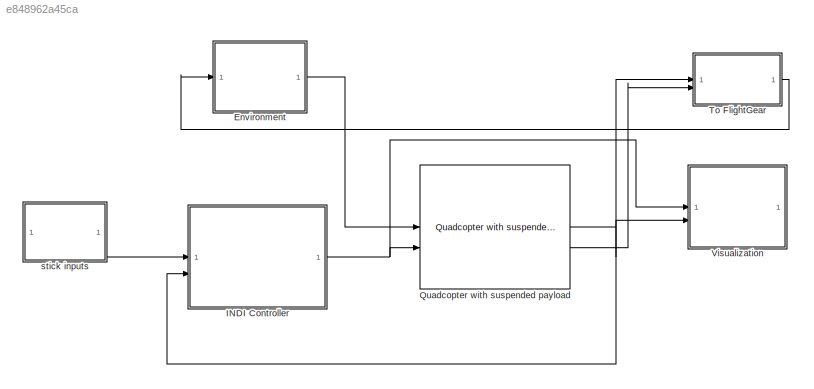
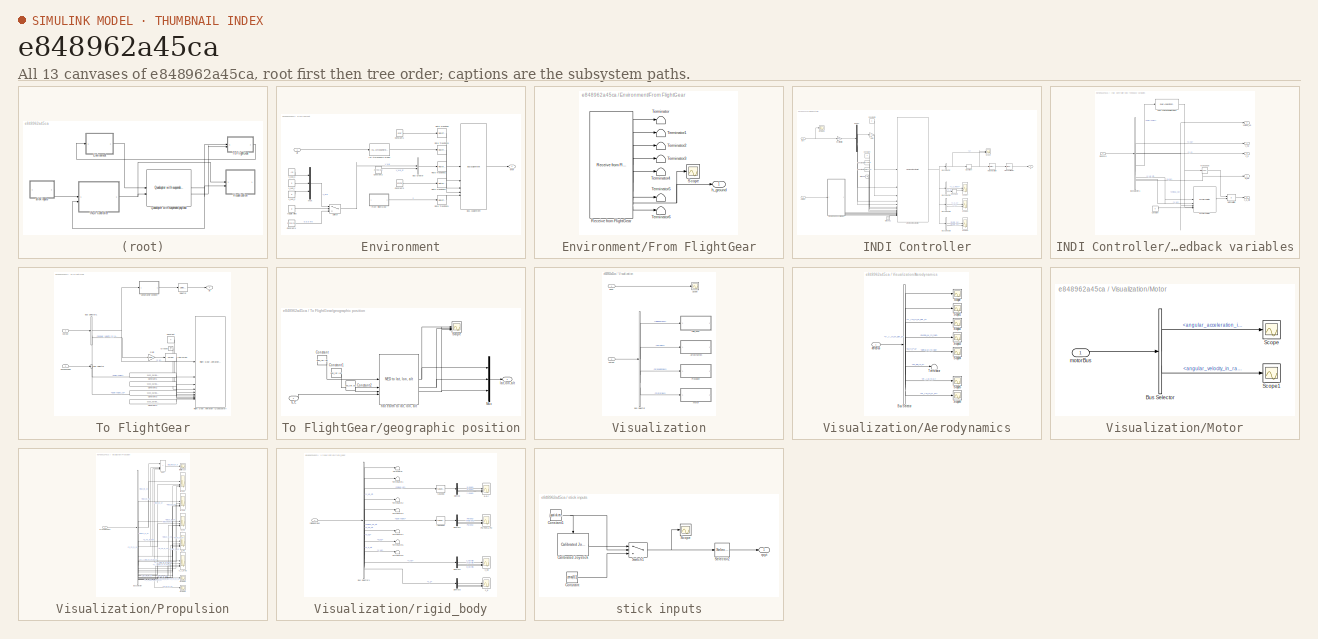
[diagram: thumbnail index - all 13 canvases of the model, root first then tree order]
MODEL slx_e848962a45ca
KIND model
CONFIG AbsTol = auto
CONFIG EnableMultiTasking = on
CONFIG FixedStep = 1/1200
CONFIG MaxStep = auto
CONFIG MinStep = auto
CONFIG RelTol = 1e-4
CONFIG SampleTimeConstraint = Unconstrained
CONFIG SolverName = ode23
CONFIG StartTime = 0.0
CONFIG StopTime = 1000
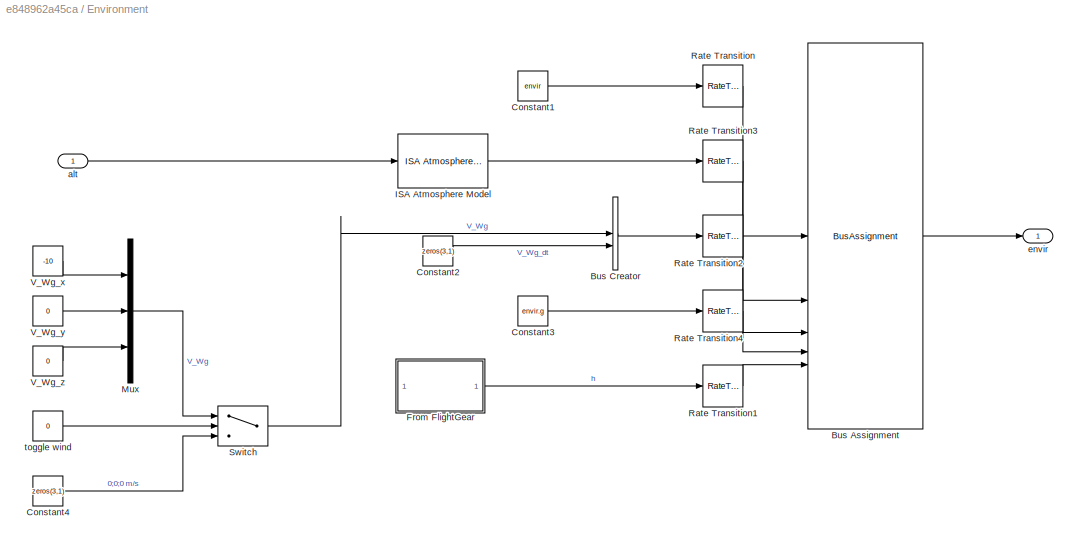
BLOCK [SubSystem] Environment
BLOCK [BusAssignment] Environment/Bus Assignment
  AssignedSignals = atmosphere,wind,g,alt_ground
BLOCK [BusCreator] Environment/Bus Creator
  DisplayOption = bar
  InheritFromInputs = on
  Inputs = 2
BLOCK [Constant] Environment/Constant1
  OutDataTypeStr = Bus: envirBus
  Value = envir
BLOCK [Constant] Environment/Constant2
  Value = zeros(3,1)
BLOCK [Constant] Environment/Constant3
  Value = envir.g
BLOCK [Constant] Environment/Constant4
  Value = zeros(3,1)
BLOCK [SubSystem] Environment/From FlightGear
BLOCK [Reference] Environment/From FlightGear/Receive from FlightGear  REF=flightgear_visualization_lib/Receive from FlightGear  (lib defined in slx_722f04e3a3fc)
  SourceBlock = flightgear_visualization_lib/Receive from FlightGear
  SourceProductName = LADAC
BLOCK [Scope] Environment/From FlightGear/Scope
  Floating = off
  NumInputPorts = 1
  ScopeSpecificationString = Simulink.scopes.TimeScopeBlockCfg('CurrentConfiguration', extmgr.ConfigurationSet(extmgr.Configuration('Core','General UI',true),extmgr.Configuration('Core','Source UI',true),extmgr.Configuration('Sources','WiredSimulink',true,'DataLoggingVariableName','ScopeData1'),extmgr.Configuration('Visuals','Time Domain',true,'SerializedDisplays',{struct('MinYLimReal','4.70605','MaxYLimReal','6.70605','YLabe...<+1441ch>
BLOCK [Terminator] Environment/From FlightGear/Terminator
BLOCK [Terminator] Environment/From FlightGear/Terminator1
BLOCK [Terminator] Environment/From FlightGear/Terminator2
BLOCK [Terminator] Environment/From FlightGear/Terminator3
BLOCK [Terminator] Environment/From FlightGear/Terminator4
BLOCK [Terminator] Environment/From FlightGear/Terminator5
BLOCK [Terminator] Environment/From FlightGear/Terminator6
BLOCK [Outport] Environment/From FlightGear/h_ground
  VectorParamsAs1DForOutWhenUnconnected = off
BLOCK [Reference] Environment/ISA Atmosphere Model  REF=atmosphere_lib/ISA Atmosphere Model  (lib defined in slx_398a0eb2fa35)
  SourceBlock = atmosphere_lib/ISA Atmosphere Model
  SourceProductName = LADAC
BLOCK [Mux] Environment/Mux
  DisplayOption = bar
  Inputs = 3
BLOCK [RateTransition] Environment/Rate Transition
BLOCK [RateTransition] Environment/Rate Transition1
BLOCK [RateTransition] Environment/Rate Transition2
BLOCK [RateTransition] Environment/Rate Transition3
BLOCK [RateTransition] Environment/Rate Transition4
BLOCK [Switch] Environment/Switch
  Criteria = u2 > Threshold
  InputSameDT = off
  SaturateOnIntegerOverflow = off
BLOCK [Constant] Environment/V_Wg_x
  Value = -10
BLOCK [Constant] Environment/V_Wg_y
  Value = 0
BLOCK [Constant] Environment/V_Wg_z
  Value = 0
BLOCK [Inport] Environment/alt
BLOCK [Outport] Environment/envir
  VectorParamsAs1DForOutWhenUnconnected = off
BLOCK [Constant] Environment/toggle wind
  Value = 0
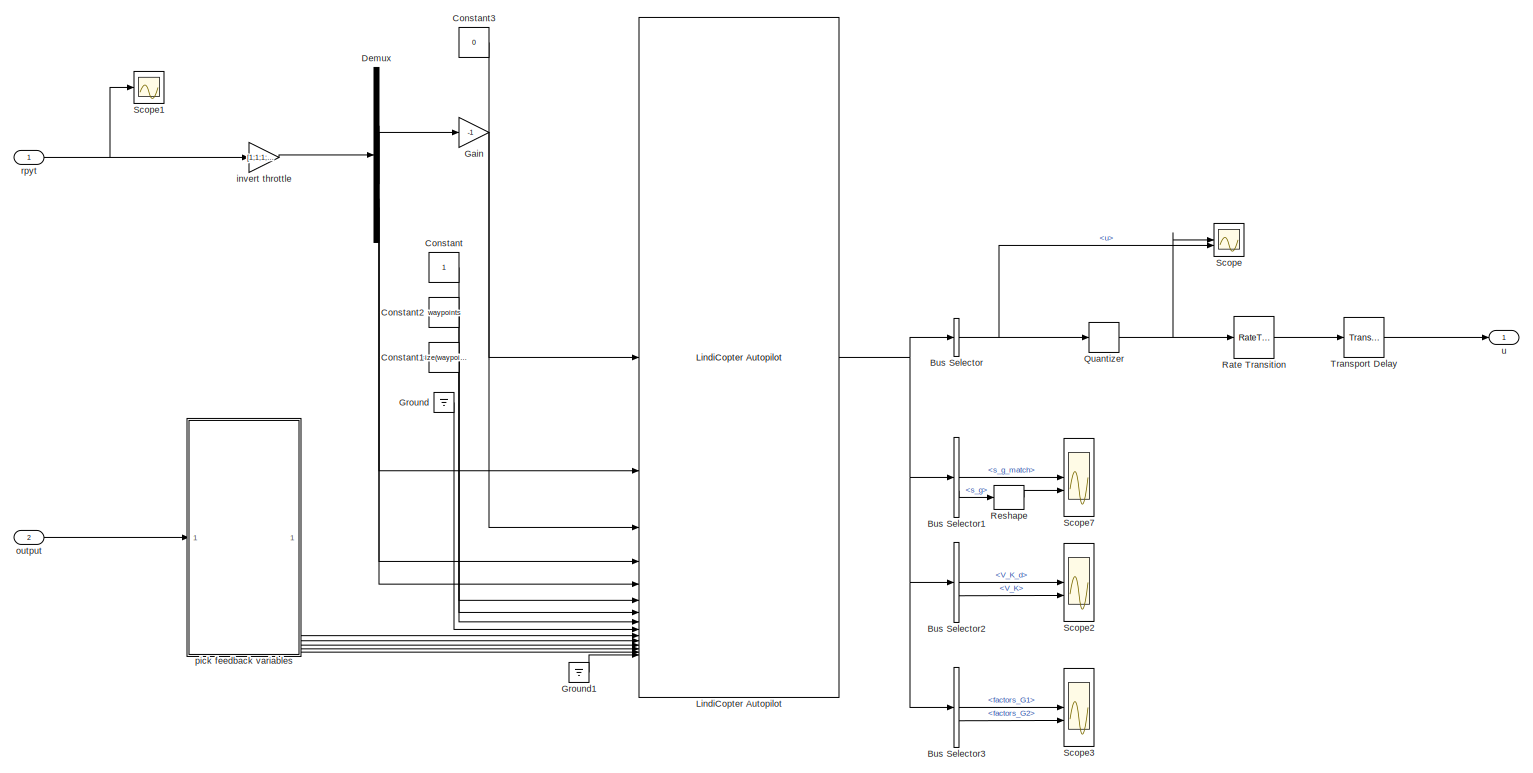
[diagram: INDI Controller - part 1/1, most of the canvas]
BLOCK [SubSystem] INDI Controller
BLOCK [BusSelector] INDI Controller/Bus Selector
  OutputSignals = inner_loop_indi.u
BLOCK [BusSelector] INDI Controller/Bus Selector1
  OutputSignals = wpnav.s_g_match,pos_cntrl.measure.s_g
BLOCK [BusSelector] INDI Controller/Bus Selector2
  OutputSignals = wpnav.velocity.V_K_d,wpnav.velocity.V_K
BLOCK [BusSelector] INDI Controller/Bus Selector3
  OutputSignals = autotune.factors_G1,autotune.factors_G2
BLOCK [Constant] INDI Controller/Constant
BLOCK [Constant] INDI Controller/Constant1
  Value = size(waypoints,2)
BLOCK [Constant] INDI Controller/Constant2
  Value = waypoints
BLOCK [Constant] INDI Controller/Constant3
  Value = 0
BLOCK [Demux] INDI Controller/Demux
BLOCK [Gain] INDI Controller/Gain
  Gain = -1
BLOCK [Ground] INDI Controller/Ground
BLOCK [Ground] INDI Controller/Ground1
BLOCK [Reference] INDI Controller/LindiCopter Autopilot  REF=lindiCopter_lib/LindiCopter Autopilot
  SourceBlock = lindiCopter_lib/LindiCopter Autopilot
  SourceProductName = LADAC
BLOCK [Quantizer] INDI Controller/Quantizer
  QuantizationInterval = 0.001
BLOCK [RateTransition] INDI Controller/Rate Transition
BLOCK [Reshape] INDI Controller/Reshape
BLOCK [Scope] INDI Controller/Scope
  Floating = off
  NumInputPorts = 2
  ScopeSpecificationString = Simulink.scopes.TimeScopeBlockCfg('CurrentConfiguration', extmgr.ConfigurationSet(extmgr.Configuration('Core','General UI',true),extmgr.Configuration('Core','Source UI',true),extmgr.Configuration('Sources','WiredSimulink',true,'DataLoggingVariableName','ScopeData1'),extmgr.Configuration('Visuals','Time Domain',true,'SerializedDisplays',{struct('MinYLimReal','0.09','MaxYLimReal','0.11','YLabelReal'...<+1713ch>
BLOCK [Scope] INDI Controller/Scope1
  Floating = off
  NumInputPorts = 1
  ScopeSpecificationString = Simulink.scopes.TimeScopeBlockCfg('CurrentConfiguration', extmgr.ConfigurationSet(extmgr.Configuration('Core','General UI',true),extmgr.Configuration('Core','Source UI',true),extmgr.Configuration('Sources','WiredSimulink',true,'DataLoggingVariableName','ScopeData1'),extmgr.Configuration('Visuals','Time Domain',true,'SerializedDisplays',{struct('MinYLimReal','-1.20979','MaxYLimReal','1.24553','YLab...<+1517ch>
BLOCK [Scope] INDI Controller/Scope2
  Floating = off
  NumInputPorts = 2
  ScopeSpecificationString = Simulink.scopes.TimeScopeBlockCfg('CurrentConfiguration', extmgr.ConfigurationSet(extmgr.Configuration('Core','General UI',true),extmgr.Configuration('Core','Source UI',true),extmgr.Configuration('Sources','WiredSimulink',true,'DataLoggingVariableName','ScopeData1'),extmgr.Configuration('Visuals','Time Domain',true,'SerializedDisplays',{struct('MinYLimReal','-3.2751','MaxYLimReal','29.47594','YLab...<+1637ch>
BLOCK [Scope] INDI Controller/Scope3
  Floating = off
  NumInputPorts = 2
  ScopeSpecificationString = Simulink.scopes.TimeScopeBlockCfg('CurrentConfiguration', extmgr.ConfigurationSet(extmgr.Configuration('Core','General UI',true),extmgr.Configuration('Core','Source UI',true),extmgr.Configuration('Sources','WiredSimulink',true,'DataLoggingVariableName','ScopeData1'),extmgr.Configuration('Visuals','Time Domain',true),extmgr.Configuration('Tools','Plot Navigation',true),extmgr.Configuration('Tools',...<+40ch>
BLOCK [Scope] INDI Controller/Scope7
  Floating = off
  NumInputPorts = 2
  ScopeSpecificationString = Simulink.scopes.TimeScopeBlockCfg('CurrentConfiguration', extmgr.ConfigurationSet(extmgr.Configuration('Core','General UI',true),extmgr.Configuration('Core','Source UI',true),extmgr.Configuration('Sources','WiredSimulink',true,'DataLoggingVariableName','pos','DataLogging',true,'DataLoggingSaveFormat','StructureWithTime'),extmgr.Configuration('Visuals','Time Domain',true,'SerializedDisplays',{struc...<+1757ch>
BLOCK [TransportDelay] INDI Controller/Transport Delay
  Commented = through
  DelayTime = 0.0025*0
BLOCK [Gain] INDI Controller/invert throttle
  Commented = through
  Gain = [1;1;1;-1]
BLOCK [Inport] INDI Controller/output
  Port = 2
BLOCK [SubSystem] INDI Controller/pick feedback variables
BLOCK [BusSelector] INDI Controller/pick feedback variables/Bus Selector1
  OutputSignals = rigidBodyBus.omega_Kb,rigidBodyBus.EulerAngles,rigidBodyBus.V_Kg,rigidBodyBus.s_g,rigidBodyBus.V_Kb_dt,rigidBodyBus.V_Kb,rigidBodyBus.M_bg
BLOCK [Constant] INDI Controller/pick feedback variables/Constant
  OutDataTypeStr = Inherit: Inherit via back propagation
  Value = 0
BLOCK [Reference] INDI Controller/pick feedback variables/Euler Angles to Rotation Matrix  REF=axes_transformation_lib/Euler Angles to Rotation Matrix  (lib defined in slx_69e2413c78c0)
  SourceBlock = axes_transformation_lib/Euler Angles to Rotation Matrix
  SourceProductName = LADAC
  SourceType = SubSystem
BLOCK [Outport] INDI Controller/pick feedback variables/M_bg
  VectorParamsAs1DForOutWhenUnconnected = off
BLOCK [Product] INDI Controller/pick feedback variables/Matrix Multiply
  Multiplication = Matrix(*)
BLOCK [Math] INDI Controller/pick feedback variables/Transpose
  Operator = transpose
  SignedPower = on
BLOCK [Outport] INDI Controller/pick feedback variables/V_Kg
  Port = 4
  VectorParamsAs1DForOutWhenUnconnected = off
BLOCK [Reference] INDI Controller/pick feedback variables/accelerometer  REF=sensors_lib/accelerometer  (lib defined in mdl_052e9be48c24, mdl_88e42053cf8c, +1 more)
  SourceBlock = sensors_lib/accelerometer
  SourceProductName = LADAC
  SourceType = SubSystem
BLOCK [Inport] INDI Controller/pick feedback variables/measure
BLOCK [Outport] INDI Controller/pick feedback variables/omega_Kb
  Port = 2
  VectorParamsAs1DForOutWhenUnconnected = off
BLOCK [Outport] INDI Controller/pick feedback variables/s_g
  Port = 3
  VectorParamsAs1DForOutWhenUnconnected = off
BLOCK [Outport] INDI Controller/pick feedback variables/s_g_dt2
  Port = 5
  VectorParamsAs1DForOutWhenUnconnected = off
BLOCK [Inport] INDI Controller/rpyt
  OutDataTypeStr = double
  SamplingMode = Sample based
  SignalType = real
BLOCK [Outport] INDI Controller/u
  OutDataTypeStr = double
  PortDimensions = 4
  SamplingMode = Sample based
  SignalType = real
  VectorParamsAs1DForOutWhenUnconnected = off
BLOCK [Reference] Quadcopter with suspended payload  REF=quadcopter_lib/Quadcopter with suspended payload  (lib defined in slx_bd6b051694d1)
  SourceBlock = quadcopter_lib/Quadcopter with suspended payload
  SourceProductName = LADAC
  SourceType = Quadcopter with suspended payload
BLOCK [SubSystem] To FlightGear
BLOCK [BusSelector] To FlightGear/Bus Selector
  OutputSignals = suspPayloadBus.EulerAngles_cp
BLOCK [BusSelector] To FlightGear/Bus Selector1
  OutputSignals = rigidBodyBus.s_g,rigidBodyBus.EulerAngles,motorBus.angular_velocity_in_rad_per_s
BLOCK [Constant] To FlightGear/Constant
  Value = 4
BLOCK [Constant] To FlightGear/Constant1
  Value = susp_payload.rod.length
BLOCK [Constant] To FlightGear/Constant2
  Value = susp_payload.visual.rod_diameter
BLOCK [Constant] To FlightGear/Constant3
  Value = susp_payload.visual.payload_diameter
BLOCK [Constant] To FlightGear/Constant4
  Value = susp_payload.joint.joint_pos_uav_c
BLOCK [Reference] To FlightGear/Flight Gear Animation (Quadcopter)  REF=flightgear_visualization_lib/Flight Gear Animation (Quadcopter)  (lib defined in slx_722f04e3a3fc)
  SourceBlock = flightgear_visualization_lib/Flight Gear Animation (Quadcopter)
  SourceProductName = LADAC
BLOCK [Gain] To FlightGear/Gain
  Gain = copter.config.propDir
BLOCK [Ground] To FlightGear/Ground
BLOCK [Selector] To FlightGear/Selector
  IndexOptions = Index vector (dialog)
  Indices = 3
  InputPortWidth = 3
  OutputSizes = 1
BLOCK [Inport] To FlightGear/SuspPayload
  Port = 2
BLOCK [Outport] To FlightGear/alt
  VectorParamsAs1DForOutWhenUnconnected = off
BLOCK [SubSystem] To FlightGear/geographic position
BLOCK [Constant] To FlightGear/geographic position/Constant
  Value = pos_ref.lat
BLOCK [Constant] To FlightGear/geographic position/Constant1
  Value = pos_ref.lon
BLOCK [Constant] To FlightGear/geographic position/Constant2
  Value = pos_ref.alt
BLOCK [Mux] To FlightGear/geographic position/Mux
  DisplayOption = bar
  Inputs = 3
BLOCK [Scope] To FlightGear/geographic position/Scope
  Floating = off
  NumInputPorts = 3
  ScopeSpecificationString = Simulink.scopes.TimeScopeBlockCfg('CurrentConfiguration', extmgr.ConfigurationSet(extmgr.Configuration('Core','General UI',true),extmgr.Configuration('Core','Source UI',true),extmgr.Configuration('Sources','WiredSimulink',true,'DataLoggingVariableName','ScopeData6'),extmgr.Configuration('Visuals','Time Domain',true,'SerializedDisplays',{struct('MinYLimReal','4.04731','MaxYLimReal','63.57425','YLab...<+1508ch>
BLOCK [Reference] To FlightGear/geographic position/flat earth to lat, lon, alt  REF=axes_transformation_lib/NED to lat, lon, alt  (lib defined in slx_69e2413c78c0)
  SourceBlock = axes_transformation_lib/NED to lat, lon, alt
  SourceProductName = LADAC
  SourceType = SubSystem
BLOCK [Outport] To FlightGear/geographic position/lat,lon,alt
  VectorParamsAs1DForOutWhenUnconnected = off
BLOCK [Inport] To FlightGear/geographic position/s_E
BLOCK [Inport] To FlightGear/output
BLOCK [Reference] To FlightGear/rad//s2rpm  REF=unit_conversions_lib/rad//s2rpm  (lib defined in slx_ae2855d4d91e)
  SourceBlock = unit_conversions_lib/rad//s2rpm
  SourceProductName = LADAC
BLOCK [SubSystem] Visualization
BLOCK [SubSystem] Visualization/Aerodynamics
BLOCK [BusSelector] Visualization/Aerodynamics/Bus Selector
  OutputSignals = V_Ab_in_m_per_s,V_A_in_m_per_s,q_in_Pa,angles.alpha_M_in_rad,angles.beta_M_in_rad,M_ba_in_1,R_Ab_in_N,Q_Ab_in_N_m
BLOCK [Scope] Visualization/Aerodynamics/Scope
  Floating = off
  NumInputPorts = 1
  ScopeSpecificationString = Simulink.scopes.TimeScopeBlockCfg('CurrentConfiguration', extmgr.ConfigurationSet(extmgr.Configuration('Core','General UI',true),extmgr.Configuration('Core','Source UI',true),extmgr.Configuration('Sources','WiredSimulink',true,'DataLoggingVariableName','ScopeData1'),extmgr.Configuration('Visuals','Time Domain',true),extmgr.Configuration('Tools','Plot Navigation',true),extmgr.Configuration('Tools',...<+40ch>
BLOCK [Scope] Visualization/Aerodynamics/Scope1
  Floating = off
  NumInputPorts = 1
  ScopeSpecificationString = Simulink.scopes.TimeScopeBlockCfg('CurrentConfiguration', extmgr.ConfigurationSet(extmgr.Configuration('Core','General UI',true),extmgr.Configuration('Core','Source UI',true),extmgr.Configuration('Sources','WiredSimulink',true,'DataLoggingVariableName','ScopeData2'),extmgr.Configuration('Visuals','Time Domain',true,'SerializedDisplays',{struct('MinYLimReal','-0.81438','MaxYLimReal','7.32941','YLab...<+1419ch>
BLOCK [Scope] Visualization/Aerodynamics/Scope2
  Floating = off
  NumInputPorts = 1
  ScopeSpecificationString = Simulink.scopes.TimeScopeBlockCfg('CurrentConfiguration', extmgr.ConfigurationSet(extmgr.Configuration('Core','General UI',true),extmgr.Configuration('Core','Source UI',true),extmgr.Configuration('Sources','WiredSimulink',true,'DataLoggingVariableName','ScopeData3'),extmgr.Configuration('Visuals','Time Domain',true),extmgr.Configuration('Tools','Plot Navigation',true),extmgr.Configuration('Tools',...<+40ch>
BLOCK [Scope] Visualization/Aerodynamics/Scope3
  Floating = off
  NumInputPorts = 1
  ScopeSpecificationString = Simulink.scopes.TimeScopeBlockCfg('CurrentConfiguration', extmgr.ConfigurationSet(extmgr.Configuration('Core','General UI',true),extmgr.Configuration('Core','Source UI',true),extmgr.Configuration('Sources','WiredSimulink',true,'DataLoggingVariableName','ScopeData4'),extmgr.Configuration('Visuals','Time Domain',true,'SerializedDisplays',{struct('MinYLimReal','-1.9635','MaxYLimReal','1.9635','YLabel...<+1413ch>
BLOCK [Scope] Visualization/Aerodynamics/Scope4
  Floating = off
  NumInputPorts = 1
  ScopeSpecificationString = Simulink.scopes.TimeScopeBlockCfg('CurrentConfiguration', extmgr.ConfigurationSet(extmgr.Configuration('Core','General UI',true),extmgr.Configuration('Core','Source UI',true),extmgr.Configuration('Sources','WiredSimulink',true,'DataLoggingVariableName','ScopeData5'),extmgr.Configuration('Visuals','Time Domain',true,'SerializedDisplays',{struct('MinYLimReal','-3.92698','MaxYLimReal','3.92696','YLab...<+1418ch>
BLOCK [Scope] Visualization/Aerodynamics/Scope5
  Floating = off
  NumInputPorts = 1
  ScopeSpecificationString = Simulink.scopes.TimeScopeBlockCfg('CurrentConfiguration', extmgr.ConfigurationSet(extmgr.Configuration('Core','General UI',true),extmgr.Configuration('Core','Source UI',true),extmgr.Configuration('Sources','WiredSimulink',true,'DataLoggingVariableName','ScopeData6'),extmgr.Configuration('Visuals','Time Domain',true,'SerializedDisplays',{struct('MinYLimReal','-0.83398','MaxYLimReal','0.42106','YLab...<+1516ch>
BLOCK [Scope] Visualization/Aerodynamics/Scope6
  Floating = off
  NumInputPorts = 1
  ScopeSpecificationString = Simulink.scopes.TimeScopeBlockCfg('CurrentConfiguration', extmgr.ConfigurationSet(extmgr.Configuration('Core','General UI',true),extmgr.Configuration('Core','Source UI',true),extmgr.Configuration('Sources','WiredSimulink',true,'DataLoggingVariableName','ScopeData7'),extmgr.Configuration('Visuals','Time Domain',true,'SerializedDisplays',{struct('MinYLimReal','-0.00000000014','MaxYLimReal','0.000000...<+1502ch>
BLOCK [Terminator] Visualization/Aerodynamics/Terminator
BLOCK [Inport] Visualization/Aerodynamics/aeroBus
BLOCK [BusSelector] Visualization/Bus Selector
  OutputSignals = rigidBodyBus,aeroBus,propulsionBus,motorBus
BLOCK [SubSystem] Visualization/Motor
BLOCK [BusSelector] Visualization/Motor/Bus Selector
  OutputSignals = angular_acceleration_in_rad_per_square_s,angular_velocity_in_rad_per_s
BLOCK [Scope] Visualization/Motor/Scope
  Floating = off
  NumInputPorts = 1
  ScopeSpecificationString = Simulink.scopes.TimeScopeBlockCfg('CurrentConfiguration', extmgr.ConfigurationSet(extmgr.Configuration('Core','General UI',true),extmgr.Configuration('Core','Source UI',true),extmgr.Configuration('Sources','WiredSimulink',true,'DataLoggingVariableName','ScopeData15'),extmgr.Configuration('Visuals','Time Domain',true,'SerializedDisplays',{struct('MinYLimReal','-14601.27633','MaxYLimReal','1999.6683...<+1596ch>
BLOCK [Scope] Visualization/Motor/Scope1
  Floating = off
  NumInputPorts = 1
  ScopeSpecificationString = Simulink.scopes.TimeScopeBlockCfg('CurrentConfiguration', extmgr.ConfigurationSet(extmgr.Configuration('Core','General UI',true),extmgr.Configuration('Core','Source UI',true),extmgr.Configuration('Sources','WiredSimulink',true,'DataLoggingVariableName','ScopeData16'),extmgr.Configuration('Visuals','Time Domain',true,'SerializedDisplays',{struct('MinYLimReal','-86.18034','MaxYLimReal','775.62302','...<+1610ch>
BLOCK [Inport] Visualization/Motor/motorBus
BLOCK [SubSystem] Visualization/Propulsion
BLOCK [BusSelector] Visualization/Propulsion/Bus Selector
  OutputSignals = propeller_1.thrust_in_N,propeller_2.thrust_in_N,propeller_3.thrust_in_N,propeller_4.thrust_in_N,propeller_1.torque_in_N,propeller_2.torque_in_N,propeller_3.torque_in_N,propeller_4.torque_in_N,propeller_1.R_Fb_in_N,propeller_2.R_Fb_in_N,propeller_3.R_Fb_in_N,propeller_4.R_Fb_in_N,propeller_1.Q_Fb_in_Nm,propeller_2.Q_Fb_in_Nm,propeller_3.Q_Fb_in_Nm,propeller_4.Q_Fb_in_Nm,propeller_1.V_A_prop_in_m_pe...<+119ch>
BLOCK [Scope] Visualization/Propulsion/Q_Fb
  Floating = off
  NumInputPorts = 4
  ScopeSpecificationString = Simulink.scopes.TimeScopeBlockCfg('CurrentConfiguration', extmgr.ConfigurationSet(extmgr.Configuration('Core','General UI',true),extmgr.Configuration('Core','Source UI',true),extmgr.Configuration('Sources','WiredSimulink',true,'DataLoggingVariableName','ScopeData11'),extmgr.Configuration('Visuals','Time Domain',true,'SerializedDisplays',{struct('MinYLimReal','-0.22601','MaxYLimReal','-0.19277','YL...<+1564ch>
BLOCK [Scope] Visualization/Propulsion/R_Fb
  Floating = off
  NumInputPorts = 4
  ScopeSpecificationString = Simulink.scopes.TimeScopeBlockCfg('CurrentConfiguration', extmgr.ConfigurationSet(extmgr.Configuration('Core','General UI',true),extmgr.Configuration('Core','Source UI',true),extmgr.Configuration('Sources','WiredSimulink',true,'DataLoggingVariableName','ScopeData10'),extmgr.Configuration('Visuals','Time Domain',true,'SerializedDisplays',{struct('MinYLimReal','-8.5339','MaxYLimReal','0.94821','YLab...<+1626ch>
BLOCK [Scope] Visualization/Propulsion/Scope5
  Floating = off
  NumInputPorts = 1
  ScopeSpecificationString = Simulink.scopes.TimeScopeBlockCfg('CurrentConfiguration', extmgr.ConfigurationSet(extmgr.Configuration('Core','General UI',true),extmgr.Configuration('Core','Source UI',true),extmgr.Configuration('Sources','WiredSimulink',true,'DataLoggingVariableName','ScopeData13'),extmgr.Configuration('Visuals','Time Domain',true,'SerializedDisplays',{struct('MinYLimReal','-34.1356','MaxYLimReal','3.79284','YLa...<+1498ch>
BLOCK [Scope] Visualization/Propulsion/Scope6
  Floating = off
  NumInputPorts = 1
  ScopeSpecificationString = Simulink.scopes.TimeScopeBlockCfg('CurrentConfiguration', extmgr.ConfigurationSet(extmgr.Configuration('Core','General UI',true),extmgr.Configuration('Core','Source UI',true),extmgr.Configuration('Sources','WiredSimulink',true,'DataLoggingVariableName','ScopeData14'),extmgr.Configuration('Visuals','Time Domain',true,'SerializedDisplays',{struct('MinYLimReal','-0.90403','MaxYLimReal','-0.77107','YL...<+1407ch>
BLOCK [Sum] Visualization/Propulsion/Sum
  IconShape = rectangular
  Inputs = 4
BLOCK [Scope] Visualization/Propulsion/V_A_prop
  Floating = off
  NumInputPorts = 4
  ScopeSpecificationString = Simulink.scopes.TimeScopeBlockCfg('CurrentConfiguration', extmgr.ConfigurationSet(extmgr.Configuration('Core','General UI',true),extmgr.Configuration('Core','Source UI',true),extmgr.Configuration('Sources','WiredSimulink',true,'DataLoggingVariableName','ScopeData12'),extmgr.Configuration('Visuals','Time Domain',true,'SerializedDisplays',{struct('MinYLimReal','-0.02599','MaxYLimReal','0.06439','YLa...<+1693ch>
BLOCK [Inport] Visualization/Propulsion/propulsionBus
BLOCK [Scope] Visualization/Propulsion/thrust
  Floating = off
  NumInputPorts = 4
  ScopeSpecificationString = Simulink.scopes.TimeScopeBlockCfg('CurrentConfiguration', extmgr.ConfigurationSet(extmgr.Configuration('Core','General UI',true),extmgr.Configuration('Core','Source UI',true),extmgr.Configuration('Sources','WiredSimulink',true,'DataLoggingVariableName','ScopeData8'),extmgr.Configuration('Visuals','Time Domain',true,'SerializedDisplays',{struct('MinYLimReal','-0.27613','MaxYLimReal','2.4852','YLabe...<+1416ch>
BLOCK [Scope] Visualization/Propulsion/torque
  Floating = off
  NumInputPorts = 4
  ScopeSpecificationString = Simulink.scopes.TimeScopeBlockCfg('CurrentConfiguration', extmgr.ConfigurationSet(extmgr.Configuration('Core','General UI',true),extmgr.Configuration('Core','Source UI',true),extmgr.Configuration('Sources','WiredSimulink',true,'DataLoggingVariableName','ScopeData9'),extmgr.Configuration('Visuals','Time Domain',true,'SerializedDisplays',{struct('MinYLimReal','-0.00039','MaxYLimReal','0.00353','YLab...<+1445ch>
BLOCK [Scope] Visualization/Propulsion/total thrust
  Floating = off
  NumInputPorts = 1
  ScopeSpecificationString = Simulink.scopes.TimeScopeBlockCfg('CurrentConfiguration', extmgr.ConfigurationSet(extmgr.Configuration('Core','General UI',true),extmgr.Configuration('Core','Source UI',true),extmgr.Configuration('Sources','WiredSimulink',true,'DataLoggingVariableName','ScopeData1'),extmgr.Configuration('Visuals','Time Domain',true),extmgr.Configuration('Tools','Plot Navigation',true),extmgr.Configuration('Tools',...<+88ch>
BLOCK [Scope] Visualization/Scope
  Floating = off
  NumInputPorts = 1
  ScopeSpecificationString = Simulink.scopes.TimeScopeBlockCfg('CurrentConfiguration', extmgr.ConfigurationSet(extmgr.Configuration('Core','General UI',true),extmgr.Configuration('Core','Source UI',true),extmgr.Configuration('Sources','WiredSimulink',true,'DataLoggingVariableName','ScopeData1'),extmgr.Configuration('Visuals','Time Domain',true,'SerializedDisplays',{struct('MinYLimReal','-0.11875','MaxYLimReal','1.06875','YLab...<+1531ch>
BLOCK [Inport] Visualization/input
BLOCK [Inport] Visualization/output
  Port = 2
BLOCK [SubSystem] Visualization/rigid_body
BLOCK [BusSelector] Visualization/rigid_body/Bus Selector1
  OutputSignals = V_Kb_dt,omega_Kb_dt,omega_Kb,q_bg_dt,q_bg,EulerAngles,s_g_dt,M_bg,V_Kg,V_Kb,s_g
BLOCK [Demux] Visualization/rigid_body/Demux
  Outputs = 3
BLOCK [Demux] Visualization/rigid_body/Demux1
  Outputs = 3
BLOCK [Demux] Visualization/rigid_body/Demux2
  Outputs = 3
BLOCK [Demux] Visualization/rigid_body/Demux3
  Outputs = 3
BLOCK [Scope] Visualization/rigid_body/Phi,Theta,Psi
  Floating = off
  NumInputPorts = 3
  ScopeSpecificationString = Simulink.scopes.TimeScopeBlockCfg('CurrentConfiguration', extmgr.ConfigurationSet(extmgr.Configuration('Core','General UI',true),extmgr.Configuration('Core','Source UI',true),extmgr.Configuration('Sources','WiredSimulink',true,'DataLoggingVariableName','ScopeAngles','DataLoggingSaveFormat','StructureWithTime'),extmgr.Configuration('Visuals','Time Domain',true,'SerializedDisplays',{struct('MinYLimR...<+1551ch>
BLOCK [Terminator] Visualization/rigid_body/Terminator
BLOCK [Terminator] Visualization/rigid_body/Terminator1
BLOCK [Terminator] Visualization/rigid_body/Terminator2
BLOCK [Terminator] Visualization/rigid_body/Terminator3
BLOCK [Terminator] Visualization/rigid_body/Terminator4
BLOCK [Terminator] Visualization/rigid_body/Terminator5
BLOCK [Terminator] Visualization/rigid_body/Terminator6
BLOCK [Scope] Visualization/rigid_body/V_Kb
  Floating = off
  NumInputPorts = 3
  ScopeSpecificationString = Simulink.scopes.TimeScopeBlockCfg('CurrentConfiguration', extmgr.ConfigurationSet(extmgr.Configuration('Core','General UI',true),extmgr.Configuration('Core','Source UI',true),extmgr.Configuration('Sources','WiredSimulink',true,'DataLoggingVariableName','ScopeV','DataLoggingSaveFormat','StructureWithTime'),extmgr.Configuration('Visuals','Time Domain',true,'SerializedDisplays',{struct('MinYLimReal',...<+1507ch>
BLOCK [Scope] Visualization/rigid_body/p,q,r
  Floating = off
  NumInputPorts = 3
  ScopeSpecificationString = Simulink.scopes.TimeScopeBlockCfg('CurrentConfiguration', extmgr.ConfigurationSet(extmgr.Configuration('Core','General UI',true),extmgr.Configuration('Core','Source UI',true),extmgr.Configuration('Sources','WiredSimulink',true,'DataLoggingVariableName','ScopeRates','DataLoggingSaveFormat','StructureWithTime'),extmgr.Configuration('Visuals','Time Domain',true,'SerializedDisplays',{struct('MinYLimRe...<+1567ch>
BLOCK [Reference] Visualization/rigid_body/rad2deg  REF=unit_conversions_lib/rad2deg  (lib defined in slx_ae2855d4d91e)
  SourceBlock = unit_conversions_lib/rad2deg
  SourceProductName = LADAC
BLOCK [Reference] Visualization/rigid_body/rad2deg1  REF=unit_conversions_lib/rad2deg  (lib defined in slx_ae2855d4d91e)
  SourceBlock = unit_conversions_lib/rad2deg
  SourceProductName = LADAC
BLOCK [Inport] Visualization/rigid_body/rigidBodyBus
BLOCK [Scope] Visualization/rigid_body/s_g
  Floating = off
  NumInputPorts = 3
  ScopeSpecificationString = Simulink.scopes.TimeScopeBlockCfg('CurrentConfiguration', extmgr.ConfigurationSet(extmgr.Configuration('Core','General UI',true),extmgr.Configuration('Core','Source UI',true),extmgr.Configuration('Sources','WiredSimulink',true,'DataLoggingVariableName','ScopeData1'),extmgr.Configuration('Visuals','Time Domain',true,'SerializedDisplays',{struct('MinYLimReal','-1.48281','MaxYLimReal','11.57965','YLa...<+1511ch>
BLOCK [SubSystem] stick inputs
BLOCK [Reference] stick inputs/Calibrated Joystick  REF=joystick_lib/Calibrated Joystick  (lib defined in slx_c24d1f50ed98)
  SourceBlock = joystick_lib/Calibrated Joystick
  SourceProductName = LADAC
BLOCK [Constant] stick inputs/Constant
  Value = zeros(8,1)
BLOCK [Constant] stick inputs/Constant1
  Value = joystick.enable
BLOCK [Scope] stick inputs/Scope
  Floating = off
  NumInputPorts = 1
  ScopeSpecificationString = Simulink.scopes.TimeScopeBlockCfg('CurrentConfiguration', extmgr.ConfigurationSet(extmgr.Configuration('Core','General UI',true),extmgr.Configuration('Core','Source UI',true),extmgr.Configuration('Sources','WiredSimulink',true,'DataLoggingVariableName','ScopeData1'),extmgr.Configuration('Visuals','Time Domain',true,'SerializedDisplays',{struct('MinYLimReal','-1.24813','MaxYLimReal','1.23318','YLab...<+1538ch>
BLOCK [Selector] stick inputs/Selector2
  IndexOptions = Index vector (dialog)
  Indices = [1,2,3,4]
  InputPortWidth = 8
  OutputSizes = 1
BLOCK [Switch] stick inputs/Switch1
  Criteria = u2 > Threshold
  InputSameDT = off
  SaturateOnIntegerOverflow = off
BLOCK [Outport] stick inputs/rpyt
  VectorParamsAs1DForOutWhenUnconnected = off
LINE Environment/Bus Assignment:1 -> Environment/envir:1
LINE Environment/Bus Creator:1 -> Environment/Rate Transition2:1
LINE Environment/Constant1:1 -> Environment/Rate Transition:1
LINE Environment/Constant2:1 -> Environment/Bus Creator:2
LINE Environment/Constant3:1 -> Environment/Rate Transition4:1
LINE Environment/Constant4:1 -> Environment/Switch:3
LINE Environment/From FlightGear/Receive from FlightGear:1 -> Environment/From FlightGear/Terminator:1
LINE Environment/From FlightGear/Receive from FlightGear:2 -> Environment/From FlightGear/Terminator1:1
LINE Environment/From FlightGear/Receive from FlightGear:3 -> Environment/From FlightGear/Terminator2:1
LINE Environment/From FlightGear/Receive from FlightGear:4 -> Environment/From FlightGear/Terminator3:1
LINE Environment/From FlightGear/Receive from FlightGear:5 -> Environment/From FlightGear/Terminator4:1
NET Environment/From FlightGear/Receive from FlightGear:6 -> Environment/From FlightGear/Scope:1, Environment/From FlightGear/h_ground:1
LINE Environment/From FlightGear/Receive from FlightGear:7 -> Environment/From FlightGear/Terminator5:1
LINE Environment/From FlightGear/Receive from FlightGear:8 -> Environment/From FlightGear/Terminator6:1
LINE Environment/From FlightGear:1 -> Environment/Rate Transition1:1
LINE Environment/ISA Atmosphere Model:1 -> Environment/Rate Transition3:1
LINE Environment/Mux:1 -> Environment/Switch:1
LINE Environment/Rate Transition1:1 -> Environment/Bus Assignment:5
LINE Environment/Rate Transition2:1 -> Environment/Bus Assignment:3
LINE Environment/Rate Transition3:1 -> Environment/Bus Assignment:2
LINE Environment/Rate Transition4:1 -> Environment/Bus Assignment:4
LINE Environment/Rate Transition:1 -> Environment/Bus Assignment:1
LINE Environment/Switch:1 -> Environment/Bus Creator:1
LINE Environment/V_Wg_x:1 -> Environment/Mux:1
LINE Environment/V_Wg_y:1 -> Environment/Mux:2
LINE Environment/V_Wg_z:1 -> Environment/Mux:3
LINE Environment/alt:1 -> Environment/ISA Atmosphere Model:1
LINE Environment/toggle wind:1 -> Environment/Switch:2
LINE Environment:1 -> Quadcopter with suspended payload:1
LINE INDI Controller/Bus Selector1:1 -> INDI Controller/Scope7:1
LINE INDI Controller/Bus Selector1:2 -> INDI Controller/Reshape:1
LINE INDI Controller/Bus Selector2:1 -> INDI Controller/Scope2:1
LINE INDI Controller/Bus Selector2:2 -> INDI Controller/Scope2:2
LINE INDI Controller/Bus Selector3:1 -> INDI Controller/Scope3:1
LINE INDI Controller/Bus Selector3:2 -> INDI Controller/Scope3:2
NET INDI Controller/Bus Selector:1 -> INDI Controller/Quantizer:1, INDI Controller/Scope:2
LINE INDI Controller/Constant1:1 -> INDI Controller/LindiCopter Autopilot:8
LINE INDI Controller/Constant2:1 -> INDI Controller/LindiCopter Autopilot:7
LINE INDI Controller/Constant3:1 -> INDI Controller/LindiCopter Autopilot:1
LINE INDI Controller/Constant:1 -> INDI Controller/LindiCopter Autopilot:6
LINE INDI Controller/Demux:1 -> INDI Controller/LindiCopter Autopilot:2
LINE INDI Controller/Demux:2 -> INDI Controller/Gain:1
LINE INDI Controller/Demux:3 -> INDI Controller/LindiCopter Autopilot:4
LINE INDI Controller/Demux:4 -> INDI Controller/LindiCopter Autopilot:5
LINE INDI Controller/Gain:1 -> INDI Controller/LindiCopter Autopilot:3
LINE INDI Controller/Ground1:1 -> INDI Controller/LindiCopter Autopilot:15
LINE INDI Controller/Ground:1 -> INDI Controller/LindiCopter Autopilot:9
NET INDI Controller/LindiCopter Autopilot:1 -> INDI Controller/Bus Selector1:1, INDI Controller/Bus Selector2:1, INDI Controller/Bus Selector3:1, INDI Controller/Bus Selector:1
NET INDI Controller/Quantizer:1 -> INDI Controller/Rate Transition:1, INDI Controller/Scope:1
LINE INDI Controller/Rate Transition:1 -> INDI Controller/Transport Delay:1
LINE INDI Controller/Reshape:1 -> INDI Controller/Scope7:2
LINE INDI Controller/Transport Delay:1 -> INDI Controller/u:1
LINE INDI Controller/invert throttle:1 -> INDI Controller/Demux:1
LINE INDI Controller/output:1 -> INDI Controller/pick feedback variables:1
NET INDI Controller/pick feedback variables/Bus Selector1:1 -> INDI Controller/pick feedback variables/accelerometer:3, INDI Controller/pick feedback variables/omega_Kb:1
LINE INDI Controller/pick feedback variables/Bus Selector1:2 -> INDI Controller/pick feedback variables/Euler Angles to Rotation Matrix:1
LINE INDI Controller/pick feedback variables/Bus Selector1:3 -> INDI Controller/pick feedback variables/V_Kg:1
LINE INDI Controller/pick feedback variables/Bus Selector1:4 -> INDI Controller/pick feedback variables/s_g:1
LINE INDI Controller/pick feedback variables/Bus Selector1:5 -> INDI Controller/pick feedback variables/accelerometer:1
LINE INDI Controller/pick feedback variables/Bus Selector1:6 -> INDI Controller/pick feedback variables/accelerometer:2
LINE INDI Controller/pick feedback variables/Bus Selector1:7 -> INDI Controller/pick feedback variables/M_bg:1
LINE INDI Controller/pick feedback variables/Constant:1 -> INDI Controller/pick feedback variables/accelerometer:5
NET INDI Controller/pick feedback variables/Euler Angles to Rotation Matrix:1 -> INDI Controller/pick feedback variables/Transpose:1, INDI Controller/pick feedback variables/accelerometer:4
LINE INDI Controller/pick feedback variables/Matrix Multiply:1 -> INDI Controller/pick feedback variables/s_g_dt2:1
LINE INDI Controller/pick feedback variables/Transpose:1 -> INDI Controller/pick feedback variables/Matrix Multiply:1
LINE INDI Controller/pick feedback variables/accelerometer:1 -> INDI Controller/pick feedback variables/Matrix Multiply:2
LINE INDI Controller/pick feedback variables/measure:1 -> INDI Controller/pick feedback variables/Bus Selector1:1
LINE INDI Controller/pick feedback variables:1 -> INDI Controller/LindiCopter Autopilot:10
LINE INDI Controller/pick feedback variables:2 -> INDI Controller/LindiCopter Autopilot:11
LINE INDI Controller/pick feedback variables:3 -> INDI Controller/LindiCopter Autopilot:12
LINE INDI Controller/pick feedback variables:4 -> INDI Controller/LindiCopter Autopilot:13
LINE INDI Controller/pick feedback variables:5 -> INDI Controller/LindiCopter Autopilot:14
NET INDI Controller/rpyt:1 -> INDI Controller/Scope1:1, INDI Controller/invert throttle:1
NET INDI Controller:1 -> Quadcopter with suspended payload:2, Visualization:1
NET Quadcopter with suspended payload:1 -> INDI Controller:2, To FlightGear:1, Visualization:2
LINE Quadcopter with suspended payload:2 -> To FlightGear:2
NET To FlightGear/Bus Selector1:1 -> To FlightGear/Flight Gear Animation (Quadcopter):1, To FlightGear/geographic position:1
LINE To FlightGear/Bus Selector1:2 -> To FlightGear/Flight Gear Animation (Quadcopter):2
LINE To FlightGear/Bus Selector1:3 -> To FlightGear/Gain:1
LINE To FlightGear/Bus Selector:1 -> To FlightGear/Flight Gear Animation (Quadcopter):6
LINE To FlightGear/Constant1:1 -> To FlightGear/Flight Gear Animation (Quadcopter):7
LINE To FlightGear/Constant2:1 -> To FlightGear/Flight Gear Animation (Quadcopter):8
LINE To FlightGear/Constant3:1 -> To FlightGear/Flight Gear Animation (Quadcopter):9
LINE To FlightGear/Constant4:1 -> To FlightGear/Flight Gear Animation (Quadcopter):10
LINE To FlightGear/Constant:1 -> To FlightGear/Flight Gear Animation (Quadcopter):3
LINE To FlightGear/Gain:1 -> To FlightGear/rad//s2rpm:1
LINE To FlightGear/Ground:1 -> To FlightGear/Flight Gear Animation (Quadcopter):4
LINE To FlightGear/Selector:1 -> To FlightGear/alt:1
LINE To FlightGear/SuspPayload:1 -> To FlightGear/Bus Selector:1
LINE To FlightGear/geographic position/Constant1:1 -> To FlightGear/geographic position/flat earth to lat, lon, alt:2
LINE To FlightGear/geographic position/Constant2:1 -> To FlightGear/geographic position/flat earth to lat, lon, alt:3
LINE To FlightGear/geographic position/Constant:1 -> To FlightGear/geographic position/flat earth to lat, lon, alt:1
LINE To FlightGear/geographic position/Mux:1 -> To FlightGear/geographic position/lat,lon,alt:1
NET To FlightGear/geographic position/flat earth to lat, lon, alt:1 -> To FlightGear/geographic position/Mux:1, To FlightGear/geographic position/Scope:1
NET To FlightGear/geographic position/flat earth to lat, lon, alt:2 -> To FlightGear/geographic position/Mux:2, To FlightGear/geographic position/Scope:2
NET To FlightGear/geographic position/flat earth to lat, lon, alt:3 -> To FlightGear/geographic position/Mux:3, To FlightGear/geographic position/Scope:3
LINE To FlightGear/geographic position/s_E:1 -> To FlightGear/geographic position/flat earth to lat, lon, alt:4
LINE To FlightGear/geographic position:1 -> To FlightGear/Selector:1
LINE To FlightGear/output:1 -> To FlightGear/Bus Selector1:1
LINE To FlightGear/rad//s2rpm:1 -> To FlightGear/Flight Gear Animation (Quadcopter):5
LINE To FlightGear:1 -> Environment:1
LINE Visualization/Aerodynamics/Bus Selector:1 -> Visualization/Aerodynamics/Scope:1
LINE Visualization/Aerodynamics/Bus Selector:2 -> Visualization/Aerodynamics/Scope1:1
LINE Visualization/Aerodynamics/Bus Selector:3 -> Visualization/Aerodynamics/Scope2:1
LINE Visualization/Aerodynamics/Bus Selector:4 -> Visualization/Aerodynamics/Scope3:1
LINE Visualization/Aerodynamics/Bus Selector:5 -> Visualization/Aerodynamics/Scope4:1
LINE Visualization/Aerodynamics/Bus Selector:6 -> Visualization/Aerodynamics/Terminator:1
LINE Visualization/Aerodynamics/Bus Selector:7 -> Visualization/Aerodynamics/Scope5:1
LINE Visualization/Aerodynamics/Bus Selector:8 -> Visualization/Aerodynamics/Scope6:1
LINE Visualization/Aerodynamics/aeroBus:1 -> Visualization/Aerodynamics/Bus Selector:1
LINE Visualization/Bus Selector:1 -> Visualization/rigid_body:1
LINE Visualization/Bus Selector:2 -> Visualization/Aerodynamics:1
LINE Visualization/Bus Selector:3 -> Visualization/Propulsion:1
LINE Visualization/Bus Selector:4 -> Visualization/Motor:1
LINE Visualization/Motor/Bus Selector:1 -> Visualization/Motor/Scope:1
LINE Visualization/Motor/Bus Selector:2 -> Visualization/Motor/Scope1:1
LINE Visualization/Motor/motorBus:1 -> Visualization/Motor/Bus Selector:1
NET Visualization/Propulsion/Bus Selector:1 -> Visualization/Propulsion/Sum:1, Visualization/Propulsion/thrust:1
LINE Visualization/Propulsion/Bus Selector:10 -> Visualization/Propulsion/R_Fb:2
LINE Visualization/Propulsion/Bus Selector:11 -> Visualization/Propulsion/R_Fb:3
LINE Visualization/Propulsion/Bus Selector:12 -> Visualization/Propulsion/R_Fb:4
LINE Visualization/Propulsion/Bus Selector:13 -> Visualization/Propulsion/Q_Fb:1
LINE Visualization/Propulsion/Bus Selector:14 -> Visualization/Propulsion/Q_Fb:2
LINE Visualization/Propulsion/Bus Selector:15 -> Visualization/Propulsion/Q_Fb:3
LINE Visualization/Propulsion/Bus Selector:16 -> Visualization/Propulsion/Q_Fb:4
LINE Visualization/Propulsion/Bus Selector:17 -> Visualization/Propulsion/V_A_prop:1
LINE Visualization/Propulsion/Bus Selector:18 -> Visualization/Propulsion/V_A_prop:2
LINE Visualization/Propulsion/Bus Selector:19 -> Visualization/Propulsion/V_A_prop:3
NET Visualization/Propulsion/Bus Selector:2 -> Visualization/Propulsion/Sum:2, Visualization/Propulsion/thrust:2
LINE Visualization/Propulsion/Bus Selector:20 -> Visualization/Propulsion/V_A_prop:4
LINE Visualization/Propulsion/Bus Selector:21 -> Visualization/Propulsion/Scope5:1
LINE Visualization/Propulsion/Bus Selector:22 -> Visualization/Propulsion/Scope6:1
NET Visualization/Propulsion/Bus Selector:3 -> Visualization/Propulsion/Sum:3, Visualization/Propulsion/thrust:3
NET Visualization/Propulsion/Bus Selector:4 -> Visualization/Propulsion/Sum:4, Visualization/Propulsion/thrust:4
LINE Visualization/Propulsion/Bus Selector:5 -> Visualization/Propulsion/torque:1
LINE Visualization/Propulsion/Bus Selector:6 -> Visualization/Propulsion/torque:2
LINE Visualization/Propulsion/Bus Selector:7 -> Visualization/Propulsion/torque:3
LINE Visualization/Propulsion/Bus Selector:8 -> Visualization/Propulsion/torque:4
LINE Visualization/Propulsion/Bus Selector:9 -> Visualization/Propulsion/R_Fb:1
LINE Visualization/Propulsion/Sum:1 -> Visualization/Propulsion/total thrust:1
LINE Visualization/Propulsion/propulsionBus:1 -> Visualization/Propulsion/Bus Selector:1
LINE Visualization/input:1 -> Visualization/Scope:1
LINE Visualization/output:1 -> Visualization/Bus Selector:1
LINE Visualization/rigid_body/Bus Selector1:1 -> Visualization/rigid_body/Terminator:1
LINE Visualization/rigid_body/Bus Selector1:10 -> Visualization/rigid_body/Demux2:1
LINE Visualization/rigid_body/Bus Selector1:11 -> Visualization/rigid_body/Demux3:1
LINE Visualization/rigid_body/Bus Selector1:2 -> Visualization/rigid_body/Terminator1:1
LINE Visualization/rigid_body/Bus Selector1:3 -> Visualization/rigid_body/rad2deg:1
LINE Visualization/rigid_body/Bus Selector1:4 -> Visualization/rigid_body/Terminator2:1
LINE Visualization/rigid_body/Bus Selector1:5 -> Visualization/rigid_body/Terminator3:1
LINE Visualization/rigid_body/Bus Selector1:6 -> Visualization/rigid_body/rad2deg1:1
LINE Visualization/rigid_body/Bus Selector1:7 -> Visualization/rigid_body/Terminator4:1
LINE Visualization/rigid_body/Bus Selector1:8 -> Visualization/rigid_body/Terminator5:1
LINE Visualization/rigid_body/Bus Selector1:9 -> Visualization/rigid_body/Terminator6:1
LINE Visualization/rigid_body/Demux1:1 -> Visualization/rigid_body/Phi,Theta,Psi:1
LINE Visualization/rigid_body/Demux1:2 -> Visualization/rigid_body/Phi,Theta,Psi:2
LINE Visualization/rigid_body/Demux1:3 -> Visualization/rigid_body/Phi,Theta,Psi:3
LINE Visualization/rigid_body/Demux2:1 -> Visualization/rigid_body/V_Kb:1
LINE Visualization/rigid_body/Demux2:2 -> Visualization/rigid_body/V_Kb:2
LINE Visualization/rigid_body/Demux2:3 -> Visualization/rigid_body/V_Kb:3
LINE Visualization/rigid_body/Demux3:1 -> Visualization/rigid_body/s_g:1
LINE Visualization/rigid_body/Demux3:2 -> Visualization/rigid_body/s_g:2
LINE Visualization/rigid_body/Demux3:3 -> Visualization/rigid_body/s_g:3
LINE Visualization/rigid_body/Demux:1 -> Visualization/rigid_body/p,q,r:1
LINE Visualization/rigid_body/Demux:2 -> Visualization/rigid_body/p,q,r:2
LINE Visualization/rigid_body/Demux:3 -> Visualization/rigid_body/p,q,r:3
LINE Visualization/rigid_body/rad2deg1:1 -> Visualization/rigid_body/Demux1:1
LINE Visualization/rigid_body/rad2deg:1 -> Visualization/rigid_body/Demux:1
LINE Visualization/rigid_body/rigidBodyBus:1 -> Visualization/rigid_body/Bus Selector1:1
LINE stick inputs/Calibrated Joystick:1 -> stick inputs/Switch1:1
NET stick inputs/Constant1:1 -> stick inputs/Calibrated Joystick:enable, stick inputs/Switch1:2
LINE stick inputs/Constant:1 -> stick inputs/Switch1:3
LINE stick inputs/Selector2:1 -> stick inputs/rpyt:1
NET stick inputs/Switch1:1 -> stick inputs/Scope:1, stick inputs/Selector2:1
LINE stick inputs:1 -> INDI Controller:1
note: NET lines group one-source signal fan-out (src -> all destinations, sorted); 1:1 wires keep LINE
